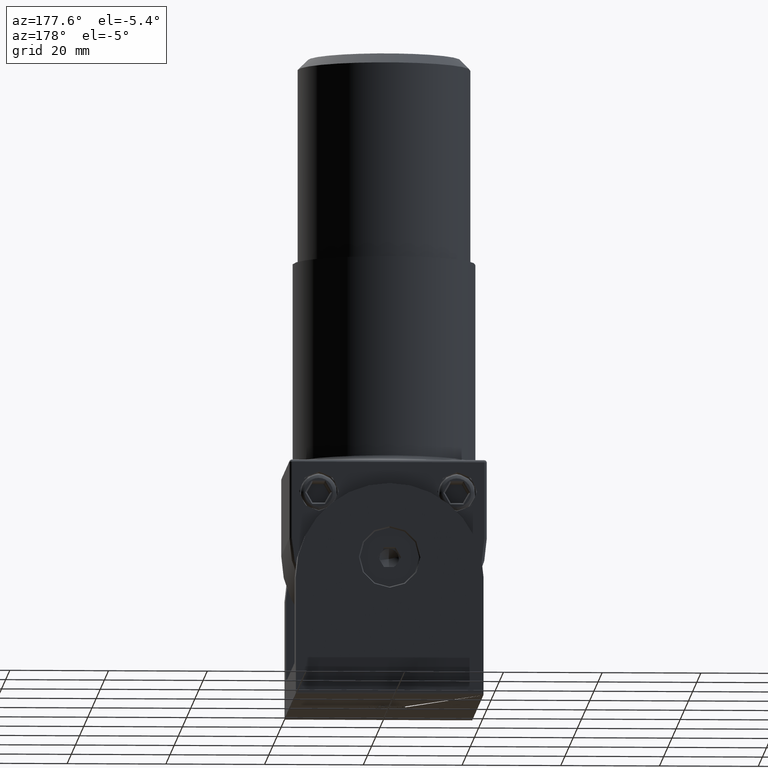
[diagram: clean part render]
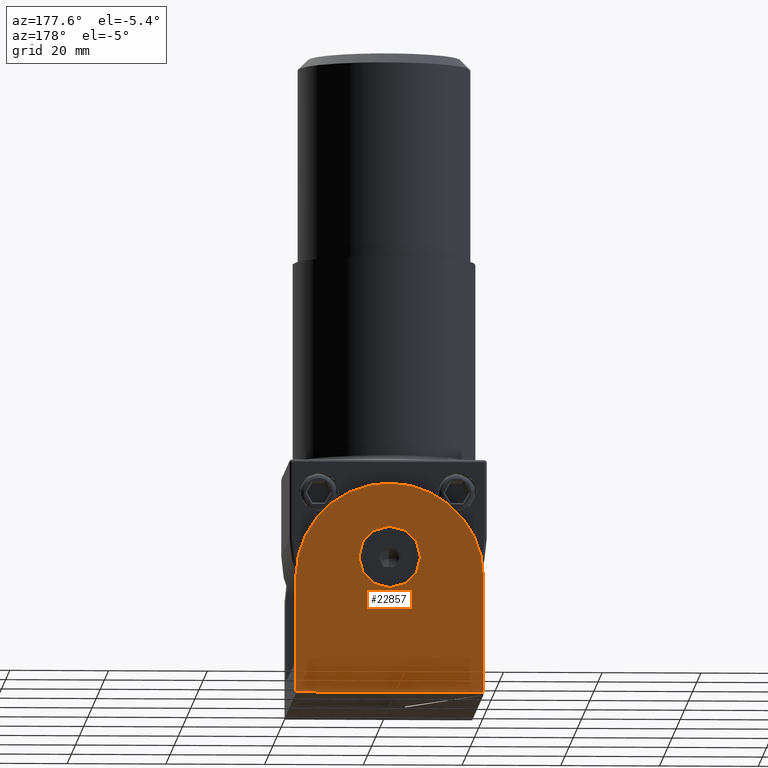
[diagram: same view with one face highlighted and labeled with its STEP entity id]
A machine part, auxiliary view. The second image highlights one B-rep face of the part: STEP entity #22857.
In plain terms, the highlighted planar face has unit normal (0, -1, 0).
Its self-contained STEP definition (entity closure, byte-faithful):
#63 = CARTESIAN_POINT ( 'NONE',  ( 19.00000000000000000, 27.50000000000000000, 23.99999999999999645 ) ) ;
#195 = CARTESIAN_POINT ( 'NONE',  ( 7.654042494670955634E-16, 27.50000000000000000, 21.75000000000000000 ) ) ;
#880 = EDGE_CURVE ( 'NONE', #19392, #21631, #21400, .T. ) ;
#998 = CIRCLE ( 'NONE', #5453, 6.250000000000001776 ) ;
#1339 = AXIS2_PLACEMENT_3D ( 'NONE', #16961, #4617, #20447 ) ;
#1769 = CARTESIAN_POINT ( 'NONE',  ( 19.00000000000000000, 27.50000000000000000, 0.4999999999999935052 ) ) ;
#2353 = CIRCLE ( 'NONE', #1339, 19.00000000000000000 ) ;
#3024 = ORIENTED_EDGE ( 'NONE', *, *, #4072, .T. ) ;
#3096 = DIRECTION ( 'NONE',  ( 0.000000000000000000, -1.000000000000000000, 0.000000000000000000 ) ) ;
#3251 = ORIENTED_EDGE ( 'NONE', *, *, #7626, .F. ) ;
#4072 = EDGE_CURVE ( 'NONE', #21473, #5426, #21305, .T. ) ;
#4426 = AXIS2_PLACEMENT_3D ( 'NONE', #13705, #3096, #15335 ) ;
#4617 = DIRECTION ( 'NONE',  ( -0.000000000000000000, 1.000000000000000000, -0.000000000000000000 ) ) ;
#4915 = CIRCLE ( 'NONE', #16023, 6.250000000000001776 ) ;
#4960 = CARTESIAN_POINT ( 'NONE',  ( 0.000000000000000000, 27.50000000000000000, 23.99999999999999645 ) ) ;
#5028 = CARTESIAN_POINT ( 'NONE',  ( 0.000000000000000000, 27.50000000000000000, 43.00000000000000000 ) ) ;
#5048 = CARTESIAN_POINT ( 'NONE',  ( -19.00000000000000000, 27.50000000000000000, 43.00000000000000000 ) ) ;
#5426 = VERTEX_POINT ( 'NONE', #15776 ) ;
#5453 = AXIS2_PLACEMENT_3D ( 'NONE', #14201, #14504, #19717 ) ;
#5858 = EDGE_CURVE ( 'NONE', #5426, #7637, #9107, .T. ) ;
#5868 = DIRECTION ( 'NONE',  ( 0.000000000000000000, 0.000000000000000000, 1.000000000000000000 ) ) ;
#5942 = CARTESIAN_POINT ( 'NONE',  ( -19.00000000000000000, 27.50000000000000000, 23.99999999999999645 ) ) ;
#6016 = CARTESIAN_POINT ( 'NONE',  ( 0.000000000000000000, 27.50000000000000000, 28.00000000000000000 ) ) ;
#6341 = DIRECTION ( 'NONE',  ( -0.000000000000000000, 1.000000000000000000, -0.000000000000000000 ) ) ;
#7392 = CARTESIAN_POINT ( 'NONE',  ( 19.00000000000000000, 27.50000000000000000, 43.00000000000000000 ) ) ;
#7429 = ORIENTED_EDGE ( 'NONE', *, *, #21510, .T. ) ;
#7626 = EDGE_CURVE ( 'NONE', #16005, #22326, #4915, .T. ) ;
#7637 = VERTEX_POINT ( 'NONE', #5942 ) ;
#7868 = DIRECTION ( 'NONE',  ( -0.000000000000000000, 1.000000000000000000, -0.000000000000000000 ) ) ;
#8110 = FACE_OUTER_BOUND ( 'NONE', #14318, .T. ) ;
#9107 = LINE ( 'NONE', #5048, #21343 ) ;
#9326 = DIRECTION ( 'NONE',  ( -0.000000000000000000, -0.000000000000000000, 1.000000000000000000 ) ) ;
#10255 = CARTESIAN_POINT ( 'NONE',  ( 0.000000000000000000, 27.50000000000000000, 34.25000000000000000 ) ) ;
#10278 = VECTOR ( 'NONE', #9326, 1000.000000000000000 ) ;
#10328 = ORIENTED_EDGE ( 'NONE', *, *, #5858, .T. ) ;
#11350 = ORIENTED_EDGE ( 'NONE', *, *, #880, .T. ) ;
#11886 = DIRECTION ( 'NONE',  ( -0.000000000000000000, -0.000000000000000000, 1.000000000000000000 ) ) ;
#13299 = LINE ( 'NONE', #7392, #10278 ) ;
#13705 = CARTESIAN_POINT ( 'NONE',  ( 19.00000000000000000, 27.50000000000000000, 43.00000000000000000 ) ) ;
#14201 = CARTESIAN_POINT ( 'NONE',  ( 0.000000000000000000, 27.50000000000000000, 28.00000000000000000 ) ) ;
#14318 = EDGE_LOOP ( 'NONE', ( #20496, #3024, #10328, #7429, #11350 ) ) ;
#14504 = DIRECTION ( 'NONE',  ( -0.000000000000000000, 1.000000000000000000, -0.000000000000000000 ) ) ;
#15335 = DIRECTION ( 'NONE',  ( 0.000000000000000000, -0.000000000000000000, -1.000000000000000000 ) ) ;
#15776 = CARTESIAN_POINT ( 'NONE',  ( -19.00000000000000000, 27.50000000000000000, 0.4999999999999935052 ) ) ;
#16005 = VERTEX_POINT ( 'NONE', #195 ) ;
#16023 = AXIS2_PLACEMENT_3D ( 'NONE', #6016, #7868, #5868 ) ;
#16572 = VECTOR ( 'NONE', #17719, 1000.000000000000000 ) ;
#16888 = EDGE_CURVE ( 'NONE', #21473, #21631, #13299, .T. ) ;
#16961 = CARTESIAN_POINT ( 'NONE',  ( 0.000000000000000000, 27.50000000000000000, 23.99999999999999645 ) ) ;
#17035 = ORIENTED_EDGE ( 'NONE', *, *, #20489, .F. ) ;
#17719 = DIRECTION ( 'NONE',  ( -1.000000000000000000, 0.000000000000000000, 0.000000000000000000 ) ) ;
#18741 = CARTESIAN_POINT ( 'NONE',  ( 19.00000000000000000, 27.50000000000000000, 0.4999999999999935052 ) ) ;
#18764 = DIRECTION ( 'NONE',  ( 0.000000000000000000, 0.000000000000000000, -1.000000000000000000 ) ) ;
#19392 = VERTEX_POINT ( 'NONE', #5028 ) ;
#19717 = DIRECTION ( 'NONE',  ( 0.000000000000000000, 0.000000000000000000, 1.000000000000000000 ) ) ;
#20447 = DIRECTION ( 'NONE',  ( 0.000000000000000000, 0.000000000000000000, -1.000000000000000000 ) ) ;
#20489 = EDGE_CURVE ( 'NONE', #22326, #16005, #998, .T. ) ;
#20496 = ORIENTED_EDGE ( 'NONE', *, *, #16888, .F. ) ;
#21212 = AXIS2_PLACEMENT_3D ( 'NONE', #4960, #6341, #18764 ) ;
#21305 = LINE ( 'NONE', #1769, #16572 ) ;
#21343 = VECTOR ( 'NONE', #11886, 1000.000000000000000 ) ;
#21400 = CIRCLE ( 'NONE', #21212, 19.00000000000000000 ) ;
#21473 = VERTEX_POINT ( 'NONE', #18741 ) ;
#21500 = EDGE_LOOP ( 'NONE', ( #17035, #3251 ) ) ;
#21510 = EDGE_CURVE ( 'NONE', #7637, #19392, #2353, .T. ) ;
#21631 = VERTEX_POINT ( 'NONE', #63 ) ;
#22285 = FACE_BOUND ( 'NONE', #21500, .T. ) ;
#22326 = VERTEX_POINT ( 'NONE', #10255 ) ;
#22386 = PLANE ( 'NONE',  #4426 ) ;
#22857 = ADVANCED_FACE ( 'NONE', ( #22285, #8110 ), #22386, .F. ) ;